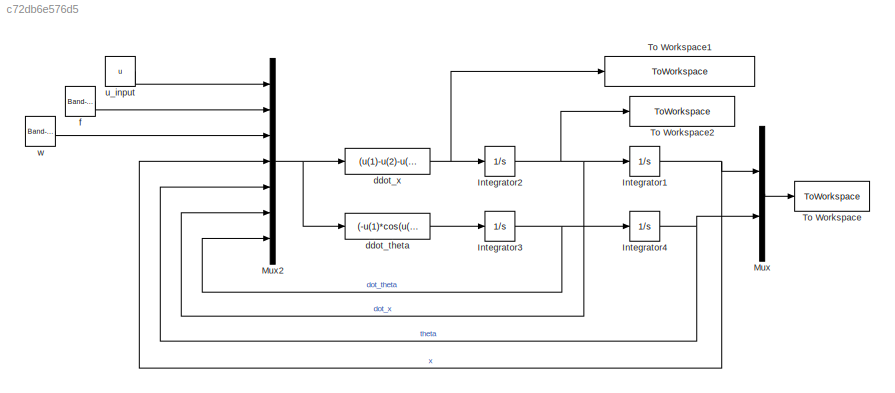
MODEL slx_c72db6e576d5
KIND model
CONFIG AbsTol = auto
CONFIG EnableMultiTasking = off
CONFIG FixedStep = auto
CONFIG MaxStep = auto
CONFIG MinStep = auto
CONFIG RelTol = 1e-3
CONFIG SampleTimeConstraint = Unconstrained
CONFIG Solver = VariableStepAuto
CONFIG SolverName = VariableStepAuto
CONFIG StartTime = 0.0
CONFIG StopTime = duration
BLOCK [Integrator] Integrator1
  Ports = [1, 1]
BLOCK [Integrator] Integrator2
  Ports = [1, 1]
BLOCK [Integrator] Integrator3
  Ports = [1, 1]
BLOCK [Integrator] Integrator4
  Ports = [1, 1]
BLOCK [Mux] Mux
  DisplayOption = bar
  Inputs = 2
  Ports = [2, 1]
BLOCK [Mux] Mux2
  DisplayOption = bar
  Inputs = 7
  Ports = [7, 1]
BLOCK [ToWorkspace] To Workspace
  FixptAsFi = on
  MaxDataPoints = inf
  Ports = [1]
  SampleTime = -1
  Save2DSignal = 3-D array (concatenate along third dimension)
  SaveFormat = Structure With Time
  VariableName = state_data
BLOCK [ToWorkspace] To Workspace1
  FixptAsFi = on
  MaxDataPoints = inf
  Ports = [1]
  SampleTime = -1
  Save2DSignal = 3-D array (concatenate along third dimension)
  SaveFormat = Structure With Time
  VariableName = linear_acceleration
BLOCK [ToWorkspace] To Workspace2
  FixptAsFi = on
  MaxDataPoints = inf
  Ports = [1]
  SampleTime = -1
  Save2DSignal = 3-D array (concatenate along third dimension)
  SaveFormat = Structure With Time
  VariableName = linear_velocity
BLOCK [Fcn] ddot_theta
  Expr = (-u(1)*cos(u(5))+u(3)*cos(u(5))-m*L*u(7)^2*sin(u(5))*cos(u(5))+(M+m)*g*sin(u(5))-(M/m)*u(2)*cos(u(5))+b*u(6)*cos(u(5))+k*u(4)*cos(u(5)))/(L*(M+m*sin(u(5))^2))
BLOCK [Fcn] ddot_x
  Expr = (u(1)-u(2)-u(3)+u(2)*cos(u(5))^2+m*L*u(7)^2*sin(u(5))-m*g*sin(u(5))*cos(u(5))-b*u(6)-k*u(4))/(M+m*sin(u(5))^2)
BLOCK [Reference] f  REF=simulink/Sources/Band-Limited
White Noise
  Ports = [0, 1]
  SourceBlock = simulink/Sources/Band-Limited\nWhite Noise
  SourceProductBaseCode = SL
  SourceProductName = Simulink
  SourceType = Band-Limited White Noise.
BLOCK [Constant] u_input
  Value = u
BLOCK [Reference] w  REF=simulink/Sources/Band-Limited
White Noise
  Ports = [0, 1]
  SourceBlock = simulink/Sources/Band-Limited\nWhite Noise
  SourceProductBaseCode = SL
  SourceProductName = Simulink
  SourceType = Band-Limited White Noise.
NET Integrator1:1 -> Mux2:4, Mux:1
NET Integrator2:1 -> Integrator1:1, Mux2:6, To Workspace2:1
NET Integrator3:1 -> Integrator4:1, Mux2:7
NET Integrator4:1 -> Mux2:5, Mux:2
NET Mux2:1 -> ddot_theta:1, ddot_x:1
LINE Mux:1 -> To Workspace:1
LINE ddot_theta:1 -> Integrator3:1
NET ddot_x:1 -> Integrator2:1, To Workspace1:1
LINE f:1 -> Mux2:2
LINE u_input:1 -> Mux2:1
LINE w:1 -> Mux2:3
note: NET lines group one-source signal fan-out (src -> all destinations, sorted); 1:1 wires keep LINE
